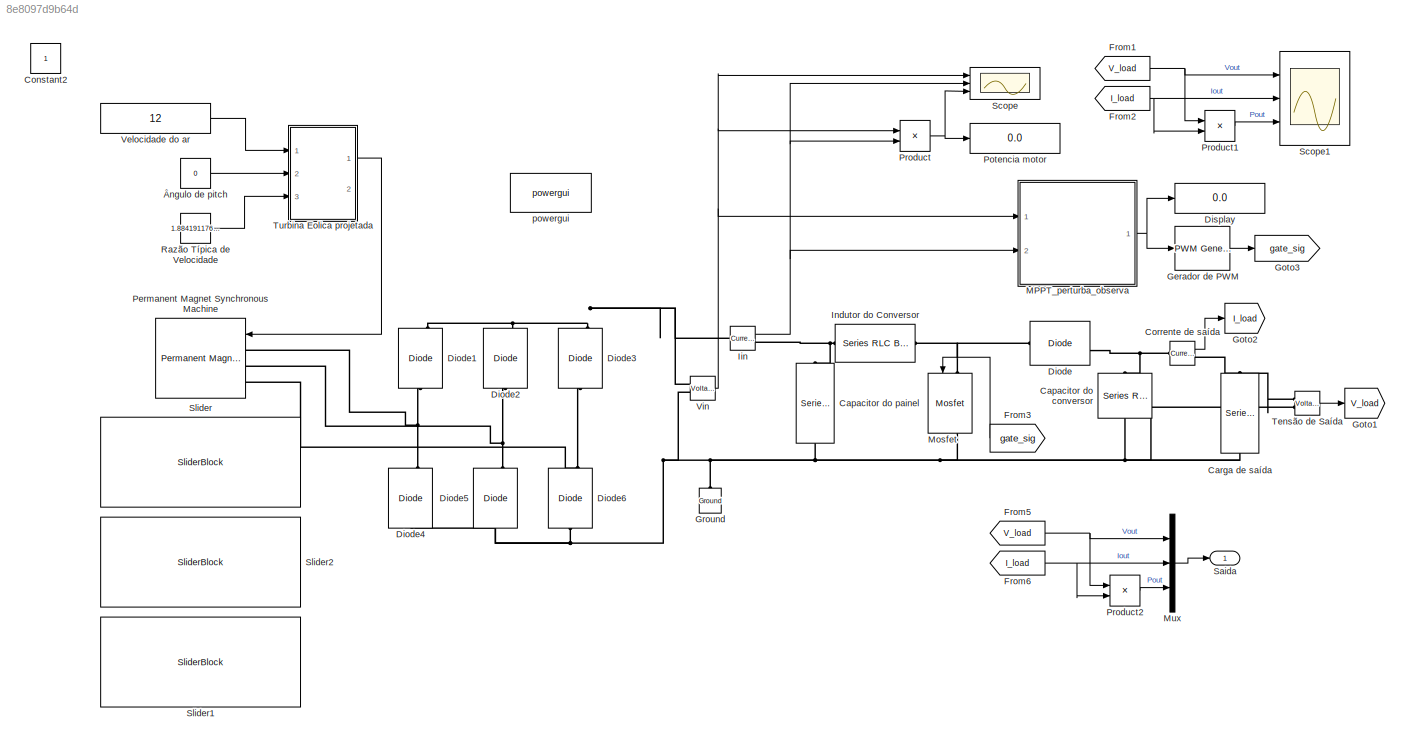
MODEL slx_8e8097d9b64d
KIND model
CONFIG AbsTol = auto
CONFIG EnableMultiTasking = off
CONFIG FixedStep = auto
CONFIG MaxStep = auto
CONFIG MinStep = auto
CONFIG RelTol = 1e-3
CONFIG SampleTimeConstraint = Unconstrained
CONFIG SolverName = VariableStepAuto
CONFIG StartTime = 0.0
CONFIG StopTime = 5.5
WORKSPACE source: mxarray member
WORKSPACE x = 50
BLOCK [Reference] Capacitor do conversor  REF=spsSeriesRLCBranchLib/Series RLC Branch
  NameLocation = left
  Ports = [0, 0, 0, 0, 0, 1, 1]
  SourceBlock = spsSeriesRLCBranchLib/Series RLC Branch
  SourceProductBaseCode = PS
  SourceType = Series RLC Branch
BLOCK [Reference] Capacitor do painel  REF=spsSeriesRLCBranchLib/Series RLC Branch
  NameLocation = left
  Ports = [0, 0, 0, 0, 0, 1, 1]
  SourceBlock = spsSeriesRLCBranchLib/Series RLC Branch
  SourceProductBaseCode = PS
  SourceType = Series RLC Branch
BLOCK [Reference] Carga de saída   REF=spsSeriesRLCBranchLib/Series RLC Branch
  NameLocation = left
  Ports = [0, 0, 0, 0, 0, 1, 1]
  SourceBlock = spsSeriesRLCBranchLib/Series RLC Branch
  SourceProductBaseCode = PS
  SourceType = Series RLC Branch
BLOCK [Constant] Constant2
  IOType = siggen
BLOCK [Reference] Corrente de saída  REF=spsCurrentMeasurementLib/Current Measurement
  Ports = [0, 1, 0, 0, 0, 1, 1]
  SourceBlock = spsCurrentMeasurementLib/Current Measurement
  SourceProductBaseCode = PS
  SourceType = Current Measurement
  UserDataPersistent = on
BLOCK [Reference] Diode  REF=spsDiodeLib/Diode
  Ports = [0, 1, 0, 0, 0, 1, 1]
  SourceBlock = spsDiodeLib/Diode
  SourceProductBaseCode = PS
  SourceType = Diode
BLOCK [Reference] Diode1  REF=spsDiodeLib/Diode
  NameLocation = right
  Ports = [0, 1, 0, 0, 0, 1, 1]
  SourceBlock = spsDiodeLib/Diode
  SourceProductBaseCode = PS
  SourceType = Diode
BLOCK [Reference] Diode2  REF=spsDiodeLib/Diode
  NameLocation = right
  Ports = [0, 1, 0, 0, 0, 1, 1]
  SourceBlock = spsDiodeLib/Diode
  SourceProductBaseCode = PS
  SourceType = Diode
BLOCK [Reference] Diode3  REF=spsDiodeLib/Diode
  NameLocation = right
  Ports = [0, 1, 0, 0, 0, 1, 1]
  SourceBlock = spsDiodeLib/Diode
  SourceProductBaseCode = PS
  SourceType = Diode
BLOCK [Reference] Diode4  REF=spsDiodeLib/Diode
  NameLocation = right
  Ports = [0, 1, 0, 0, 0, 1, 1]
  SourceBlock = spsDiodeLib/Diode
  SourceProductBaseCode = PS
  SourceType = Diode
BLOCK [Reference] Diode5  REF=spsDiodeLib/Diode
  NameLocation = right
  Ports = [0, 1, 0, 0, 0, 1, 1]
  SourceBlock = spsDiodeLib/Diode
  SourceProductBaseCode = PS
  SourceType = Diode
BLOCK [Reference] Diode6  REF=spsDiodeLib/Diode
  NameLocation = right
  Ports = [0, 1, 0, 0, 0, 1, 1]
  SourceBlock = spsDiodeLib/Diode
  SourceProductBaseCode = PS
  SourceType = Diode
BLOCK [Display] Display
  Decimation = 1
  Ports = [1]
BLOCK [From] From1
  GotoTag = V_load
BLOCK [From] From2
  GotoTag = I_load
BLOCK [From] From3
  GotoTag = gate_sig
  NameLocation = top
BLOCK [From] From5
  GotoTag = V_load
BLOCK [From] From6
  GotoTag = I_load
BLOCK [Reference] Gerador de PWM  REF=spsPWMGeneratorDCDCLib/PWM Generator
(DC-DC)
  Ports = [1, 1]
  SourceBlock = spsPWMGeneratorDCDCLib/PWM Generator\n(DC-DC)
  SourceProductBaseCode = PS
  SourceType = PWM Generator (DC-DC)
BLOCK [Goto] Goto1
  GotoTag = V_load
BLOCK [Goto] Goto2
  GotoTag = I_load
BLOCK [Goto] Goto3
  GotoTag = gate_sig
BLOCK [Reference] Ground  REF=spsGroundLib/Ground
  NameLocation = right
  Ports = [0, 0, 0, 0, 0, 1]
  SourceBlock = spsGroundLib/Ground
  SourceProductBaseCode = PS
  SourceType = Ground
BLOCK [Reference] Iin  REF=spsCurrentMeasurementLib/Current Measurement
  Ports = [0, 1, 0, 0, 0, 1, 1]
  SourceBlock = spsCurrentMeasurementLib/Current Measurement
  SourceProductBaseCode = PS
  SourceType = Current Measurement
  UserDataPersistent = on
BLOCK [Reference] Indutor do Conversor  REF=spsSeriesRLCBranchLib/Series RLC Branch
  NameLocation = top
  Ports = [0, 0, 0, 0, 0, 1, 1]
  SourceBlock = spsSeriesRLCBranchLib/Series RLC Branch
  SourceProductBaseCode = PS
  SourceType = Series RLC Branch
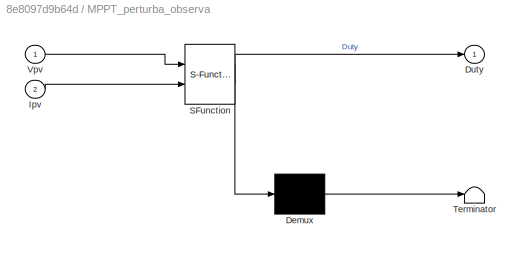
BLOCK [SubSystem] MPPT_perturba_observa
  ErrorFcn = Stateflow.Translate.translate
  PermitHierarchicalResolution = ExplicitOnly
  Ports = [2, 1]
  RequestExecContextInheritance = off
  SFBlockType = MATLAB Function
  TreatAsAtomicUnit = on
BLOCK [Demux] MPPT_perturba_observa/ Demux 
  Outputs = 1
  Ports = [1, 1]
BLOCK [S-Function] MPPT_perturba_observa/ SFunction 
  EnableBusSupport = on
  FunctionName = sf_sfun
  PortCounts = [2 2]
  Ports = [2, 2]
  SFcnIsStateOwnerBlock = off
  SFunctionDeploymentMode = off
  Tag = Stateflow S-Function 1
BLOCK [Terminator] MPPT_perturba_observa/ Terminator 
BLOCK [Outport] MPPT_perturba_observa/Duty
BLOCK [Inport] MPPT_perturba_observa/Ipv
  Port = 2
BLOCK [Inport] MPPT_perturba_observa/Vpv
BLOCK [Reference] Mosfet  REF=spsMosfetLib/Mosfet
  NameLocation = left
  Ports = [1, 1, 0, 0, 0, 1, 1]
  SourceBlock = spsMosfetLib/Mosfet
  SourceProductBaseCode = PS
  SourceType = Mosfet
BLOCK [Mux] Mux
  DisplayOption = bar
  Inputs = 3
  Ports = [3, 1]
BLOCK [Reference] Permanent Magnet Synchronous Machine  REF=spsPermanentMagnetSynchronousMachineLib/Permanent Magnet
Synchronous Machine
  Ports = [1, 1, 0, 0, 0, 3]
  SourceBlock = spsPermanentMagnetSynchronousMachineLib/Permanent Magnet\nSynchronous Machine
  SourceProductBaseCode = PS
  SourceType = Permanent Magnet Synchronous Machine
BLOCK [Display] Potencia motor
  Decimation = 1
  Ports = [1]
BLOCK [Product] Product
  Ports = [2, 1]
BLOCK [Product] Product1
  Ports = [2, 1]
BLOCK [Product] Product2
  Ports = [2, 1]
BLOCK [Constant] Razão Típica de Velocidade
  Value = 1.884191176470588
BLOCK [Outport] Saida
BLOCK [Scope] Scope
  Floating = off
  NumInputPorts = 3
  Ports = [3]
  ScopeSpecificationString = Simulink.scopes.TimeScopeBlockCfg('CurrentConfiguration', extmgr.ConfigurationSet(extmgr.Configuration('Core','General UI',true),extmgr.Configuration('Core','Source UI',true),extmgr.Configuration('Sources','WiredSimulink',true),extmgr.Configuration('Visuals','Time Domain',true,'SerializedDisplays',{struct('MinYLimReal','-11.89657','MaxYLimReal','152.13385','YLabelReal','','MinYLimMag','0.00000','M...<+2725ch>
BLOCK [Scope] Scope1
  Floating = off
  NumInputPorts = 3
  Ports = [3]
  ScopeSpecificationString = Simulink.scopes.TimeScopeBlockCfg('CurrentConfiguration', extmgr.ConfigurationSet(extmgr.Configuration('Core','General UI',true,'FigureColor',[1 1 1]),extmgr.Configuration('Core','Source UI',true),extmgr.Configuration('Sources','WiredSimulink',true,'DataLoggingVariableName','ScopeData1'),extmgr.Configuration('Visuals','Time Domain',true,'SerializedDisplays',{struct('MinYLimReal','-9.79083','MaxYLi...<+3058ch>
BLOCK [SliderBlock] Slider
  ScaleMax = 12
BLOCK [SliderBlock] Slider1
  ScaleMax = 10
BLOCK [SliderBlock] Slider2
  ScaleMax = 5
BLOCK [Reference] Tensão de Saída  REF=spsVoltageMeasurementLib/Voltage Measurement
  Ports = [0, 1, 0, 0, 0, 2]
  SourceBlock = spsVoltageMeasurementLib/Voltage Measurement
  SourceProductBaseCode = PS
  SourceType = Voltage Measurement
  UserDataPersistent = on
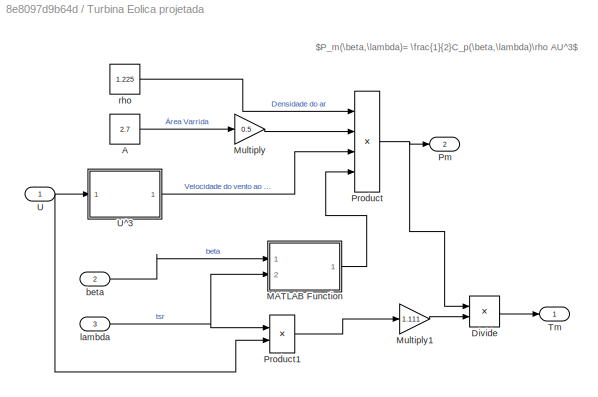
BLOCK [SubSystem] Turbina Eolica projetada
  Ports = [3, 2]
  RequestExecContextInheritance = off
BLOCK [Constant] Turbina Eolica projetada/A
  Value = 2.7
BLOCK [Product] Turbina Eolica projetada/Divide
  Inputs = */
  Ports = [2, 1]
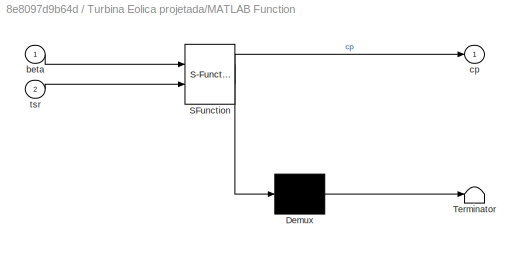
BLOCK [SubSystem] Turbina Eolica projetada/MATLAB Function
  ErrorFcn = Stateflow.Translate.translate
  PermitHierarchicalResolution = ExplicitOnly
  Ports = [2, 1]
  RequestExecContextInheritance = off
  SFBlockType = MATLAB Function
  TreatAsAtomicUnit = on
BLOCK [Demux] Turbina Eolica projetada/MATLAB Function/ Demux 
  Outputs = 1
  Ports = [1, 1]
BLOCK [S-Function] Turbina Eolica projetada/MATLAB Function/ SFunction 
  EnableBusSupport = on
  FunctionName = sf_sfun
  PortCounts = [2 2]
  Ports = [2, 2]
  SFcnIsStateOwnerBlock = off
  SFunctionDeploymentMode = off
  Tag = Stateflow S-Function 3
BLOCK [Terminator] Turbina Eolica projetada/MATLAB Function/ Terminator 
BLOCK [Inport] Turbina Eolica projetada/MATLAB Function/beta
BLOCK [Outport] Turbina Eolica projetada/MATLAB Function/cp
BLOCK [Inport] Turbina Eolica projetada/MATLAB Function/tsr
  Port = 2
BLOCK [Gain] Turbina Eolica projetada/Multiply
  Gain = 0.5
BLOCK [Gain] Turbina Eolica projetada/Multiply1
  Gain = 1.111
BLOCK [Outport] Turbina Eolica projetada/Pm
  Port = 2
BLOCK [Product] Turbina Eolica projetada/Product
  Inputs = 4
  Ports = [4, 1]
BLOCK [Product] Turbina Eolica projetada/Product1
  Ports = [2, 1]
BLOCK [Outport] Turbina Eolica projetada/Tm
BLOCK [Inport] Turbina Eolica projetada/U
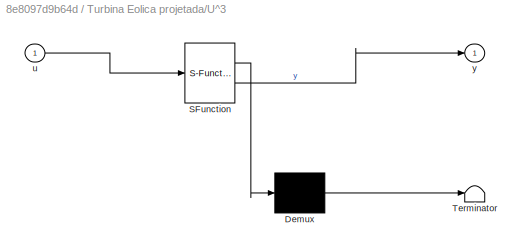
BLOCK [SubSystem] Turbina Eolica projetada/U^3
  ErrorFcn = Stateflow.Translate.translate
  PermitHierarchicalResolution = ExplicitOnly
  Ports = [1, 1]
  RequestExecContextInheritance = off
  SFBlockType = MATLAB Function
  TreatAsAtomicUnit = on
BLOCK [Demux] Turbina Eolica projetada/U^3/ Demux 
  Outputs = 1
  Ports = [1, 1]
BLOCK [S-Function] Turbina Eolica projetada/U^3/ SFunction 
  EnableBusSupport = on
  FunctionName = sf_sfun
  PortCounts = [1 2]
  Ports = [1, 2]
  SFcnIsStateOwnerBlock = off
  SFunctionDeploymentMode = off
  Tag = Stateflow S-Function 2
BLOCK [Terminator] Turbina Eolica projetada/U^3/ Terminator 
BLOCK [Inport] Turbina Eolica projetada/U^3/u
BLOCK [Outport] Turbina Eolica projetada/U^3/y
BLOCK [Inport] Turbina Eolica projetada/beta
  Port = 2
BLOCK [Inport] Turbina Eolica projetada/lambda
  Port = 3
BLOCK [Constant] Turbina Eolica projetada/rho
  Value = 1.225
BLOCK [Constant] Velocidade do ar
  Value = 12
BLOCK [Reference] Vin  REF=spsVoltageMeasurementLib/Voltage Measurement
  Ports = [0, 1, 0, 0, 0, 2]
  SourceBlock = spsVoltageMeasurementLib/Voltage Measurement
  SourceProductBaseCode = PS
  SourceType = Voltage Measurement
  UserDataPersistent = on
BLOCK [Reference] powergui  REF=spspowerguiLib/powergui
  Ports = []
  Priority = 1
  SourceBlock = spspowerguiLib/powergui
  SourceProductBaseCode = PS
  SourceType = PSB option menu block
BLOCK [Constant] Ângulo de pitch
  Value = 0
ANNOTATION Turbina Eolica projetada: $P_m(\beta,\lambda)= \frac{1}{2}C_p(\beta,\lambda)\rho AU^3$
LINE Corrente de saída:1 -> Goto2:1
NET From1:1 -> Product1:1, Scope1:1
NET From2:1 -> Product1:2, Scope1:2
LINE From3:1 -> Mosfet:1
NET From5:1 -> Mux:1, Product2:1
NET From6:1 -> Mux:2, Product2:2
LINE Gerador de PWM:1 -> Goto3:1
NET Iin:1 -> MPPT_perturba_observa:2, Product:2, Scope:2
NET MPPT_perturba_observa:1 -> Display:1, Gerador de PWM:1
LINE Mux:1 -> Saida:1
LINE Product1:1 -> Scope1:3
LINE Product2:1 -> Mux:3
NET Product:1 -> Potencia motor:1, Scope:3
LINE Razão Típica de Velocidade:1 -> Turbina Eolica projetada:3
LINE Tensão de Saída:1 -> Goto1:1
LINE Turbina Eolica projetada/A:1 -> Turbina Eolica projetada/Multiply:1
LINE Turbina Eolica projetada/Divide:1 -> Turbina Eolica projetada/Tm:1
LINE Turbina Eolica projetada/MATLAB Function:1 -> Turbina Eolica projetada/Product:4
LINE Turbina Eolica projetada/Multiply1:1 -> Turbina Eolica projetada/Divide:2
LINE Turbina Eolica projetada/Multiply:1 -> Turbina Eolica projetada/Product:2
LINE Turbina Eolica projetada/Product1:1 -> Turbina Eolica projetada/Multiply1:1
NET Turbina Eolica projetada/Product:1 -> Turbina Eolica projetada/Divide:1, Turbina Eolica projetada/Pm:1
NET Turbina Eolica projetada/U:1 -> Turbina Eolica projetada/Product1:2, Turbina Eolica projetada/U^3:1
LINE Turbina Eolica projetada/U^3:1 -> Turbina Eolica projetada/Product:3
LINE Turbina Eolica projetada/beta:1 -> Turbina Eolica projetada/MATLAB Function:1
NET Turbina Eolica projetada/lambda:1 -> Turbina Eolica projetada/MATLAB Function:2, Turbina Eolica projetada/Product1:1
LINE Turbina Eolica projetada/rho:1 -> Turbina Eolica projetada/Product:1
LINE Turbina Eolica projetada:1 -> Permanent Magnet Synchronous Machine:1
LINE Velocidade do ar:1 -> Turbina Eolica projetada:1
NET Vin:1 -> MPPT_perturba_observa:1, Product:1, Scope:1
LINE Ângulo de pitch:1 -> Turbina Eolica projetada:2
PNET net1: Capacitor do conversor:LConn1 -- Corrente de saída:LConn1 -- Diode:RConn1
PNET net2: Capacitor do conversor:RConn1 -- Capacitor do painel:RConn1 -- Carga de saída :RConn1 -- Diode4:LConn1 -- Diode5:LConn1 -- Diode6:LConn1 -- Ground:LConn1 -- Mosfet:RConn1 -- Tensão de Saída:LConn2 -- Vin:LConn2
PNET net3: Capacitor do painel:LConn1 -- Iin:RConn1 -- Indutor do Conversor:RConn1
PNET net4: Carga de saída :LConn1 -- Corrente de saída:RConn1 -- Tensão de Saída:LConn1
PNET net5: Diode1:LConn1 -- Diode4:RConn1 -- Permanent Magnet Synchronous Machine:LConn1
PNET net6: Diode1:RConn1 -- Diode2:RConn1 -- Diode3:RConn1 -- Iin:LConn1 -- Vin:LConn1
PNET net7: Diode2:LConn1 -- Diode5:RConn1 -- Permanent Magnet Synchronous Machine:LConn2
PNET net8: Diode3:LConn1 -- Diode6:RConn1 -- Permanent Magnet Synchronous Machine:LConn3
PNET net9: Diode:LConn1 -- Indutor do Conversor:LConn1 -- Mosfet:LConn1
note: NET lines group one-source signal fan-out (src -> all destinations, sorted); 1:1 wires keep LINE; PNET lines group multi-terminal physical nets as a canonical sorted terminal list (undirected conserving connections); 2-terminal nets keep the pairwise PLINE form
CHART Turbina Eolica projetada/U^3 states=1 transitions=1
  STATE_LABEL 'eML_blk_kernel()'
  STATE_LABEL 'SCRIPT:\nfunction y = fcn(u)\ny = u^3;\n'
CHART Turbina Eolica projetada/MATLAB Function states=1 transitions=1
  STATE_LABEL 'eML_blk_kernel()'
  STATE_LABEL 'SCRIPT:\nfunction cp = fcn(beta, tsr)\nc1 = 0.387;\nc2 = 116;\nc3 = 0.4;\nc4 = 5;\nc5 = 21;\nc6 = 0.08;\nc7 = 0.035;\nc8 = 0.00413;\nc9 = 3.7;\ncp = c1*((-c4-c3*(2.5+beta)+c2/(c9*tsr+c6*(2.5+beta)) -c2*c7/(c9*tsr+(2.5+beta)^3))/exp(c5*(1/(c9*tsr+c6*(2.5+beta))-c7/(c9*tsr+(2.5+beta)^3)))) + c8*c9*tsr;\n'
CHART MPPT_perturba_observa states=1 transitions=1
  STATE_LABEL 'eML_blk_kernel()'
  STATE_LABEL 'SCRIPT:\nfunction Duty = MPPT_perturba_observa(Vpv, Ipv)\n\n\n    %% Declaração das variaveis como persistent de forma que os valores \n    %  fiquem armazenados mesmo com o término da função\n    \n    persistent Vpv_old Ppv_old Duty_old\n    \n    % Inicializacao das variaveis\n    if isempty(Duty_old)\n       Duty_old = 0.5;\n       Ppv_old = 0;\n       Vpv_old = 0;\n    end\n    \n    Duty_var = 100e-6;      ...<+787ch>'
CHART  states=0 transitions=0
CHART  states=0 transitions=0
CHART  states=0 transitions=0
